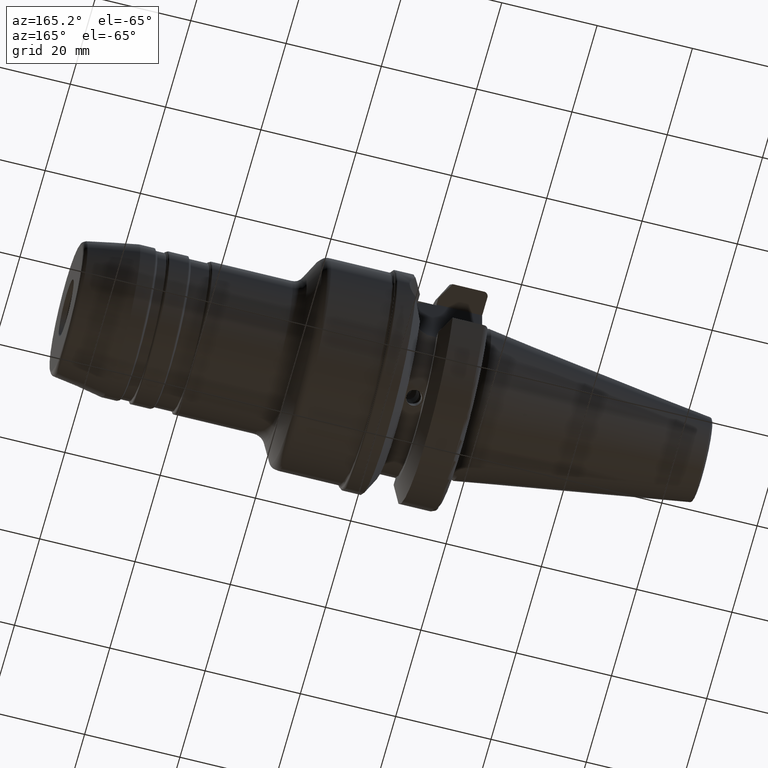
[diagram: clean part render]
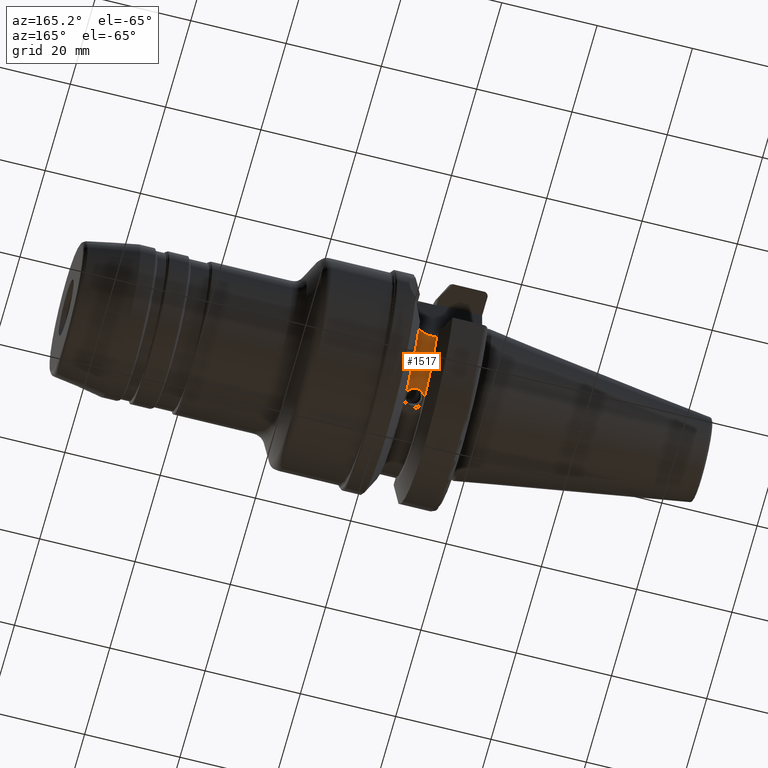
[diagram: same view with one face highlighted and labeled with its STEP entity id]
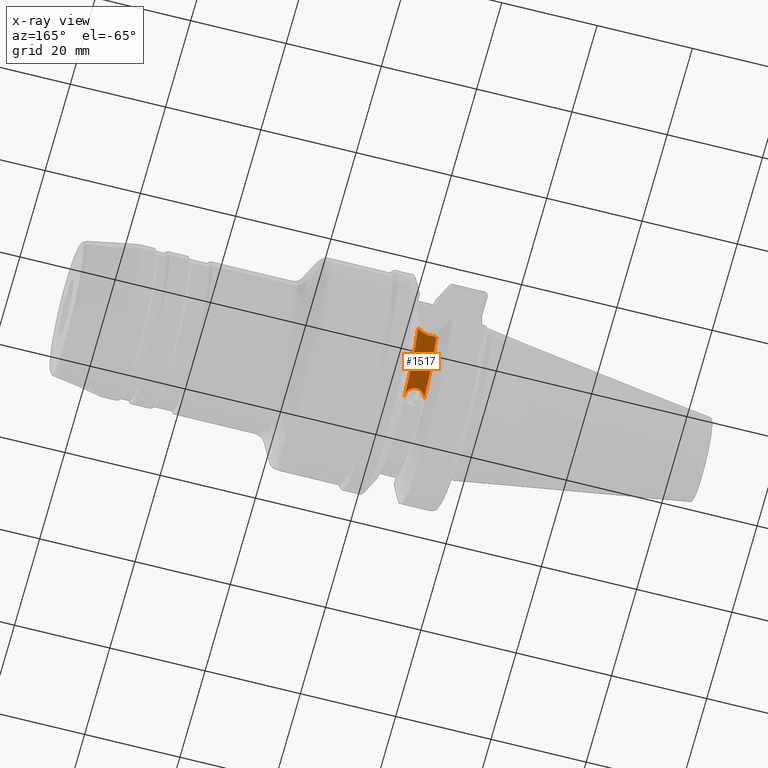
[diagram: x-ray of the same camera — body ghosted, the highlighted face saturated]
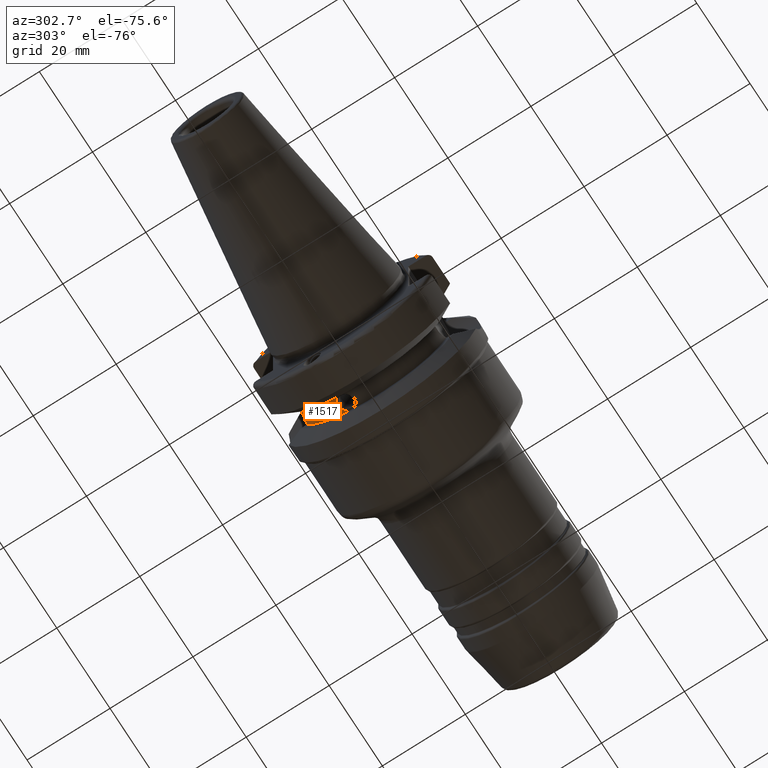
[diagram: same view with one face highlighted and labeled with its STEP entity id]
A machine part, auxiliary view. The second image highlights one B-rep face of the part: STEP entity #1517.
The next image is the same camera in x-ray: the body ghosted, the highlighted face saturated — about 0% of this face is hidden behind the body in this view.
A second angle (auxiliary view) of the same face is appended — the face is thin or edge-on in the first view.
In plain terms, the highlighted cylindrical surface (partial cylindrical patch) has radius 18 mm, axis along (1, 0, 0).
Its self-contained STEP definition (entity closure, byte-faithful):
#53=B_SPLINE_CURVE_WITH_KNOTS('',3,(#2731,#2732,#2733,#2734,#2735,#2736,
#2737,#2738,#2739,#2740,#2741,#2742,#2743,#2744,#2745,#2746,#2747,#2748,
#2749),.UNSPECIFIED.,.F.,.F.,(4,2,2,2,3,2,2,2,4),(0.904850416773924,0.980254422145898,
1.05565842751787,1.13106282494155,1.20646722236523,1.28187161978891,1.35727601721259,
1.43268002258457,1.50808402795654),.UNSPECIFIED.);
#54=B_SPLINE_CURVE_WITH_KNOTS('',3,(#2757,#2758,#2759,#2760,#2761,#2762),
 .UNSPECIFIED.,.F.,.F.,(4,2,4),(2.71612491144291,2.77269082711797,2.94431279974824),
 .UNSPECIFIED.);
#146=LINE('',#2755,#219);
#219=VECTOR('',#2093,10.);
#284=CYLINDRICAL_SURFACE('',#1712,18.);
#349=FACE_OUTER_BOUND('',#449,.T.);
#449=EDGE_LOOP('',(#1202,#1203,#1204,#1205,#1206));
#559=CIRCLE('',#1713,18.);
#560=CIRCLE('',#1714,18.);
#679=VERTEX_POINT('',#2710);
#680=VERTEX_POINT('',#2712);
#681=VERTEX_POINT('',#2752);
#682=VERTEX_POINT('',#2754);
#683=VERTEX_POINT('',#2756);
#870=EDGE_CURVE('',#679,#680,#53,.T.);
#871=EDGE_CURVE('',#680,#681,#559,.T.);
#872=EDGE_CURVE('',#681,#682,#146,.T.);
#873=EDGE_CURVE('',#682,#683,#54,.T.);
#874=EDGE_CURVE('',#679,#683,#560,.T.);
#1202=ORIENTED_EDGE('',*,*,#870,.T.);
#1203=ORIENTED_EDGE('',*,*,#871,.T.);
#1204=ORIENTED_EDGE('',*,*,#872,.T.);
#1205=ORIENTED_EDGE('',*,*,#873,.T.);
#1206=ORIENTED_EDGE('',*,*,#874,.F.);
#1517=ADVANCED_FACE('',(#349),#284,.T.);
#1712=AXIS2_PLACEMENT_3D('',#2751,#2089,#2090);
#1713=AXIS2_PLACEMENT_3D('',#2753,#2091,#2092);
#1714=AXIS2_PLACEMENT_3D('',#2763,#2094,#2095);
#2089=DIRECTION('center_axis',(1.,1.62798202122572E-21,0.));
#2090=DIRECTION('ref_axis',(0.,1.,0.));
#2091=DIRECTION('center_axis',(1.,1.62798202122572E-21,0.));
#2092=DIRECTION('ref_axis',(0.,0.,-1.));
#2093=DIRECTION('',(1.,1.62798202122572E-21,0.));
#2094=DIRECTION('center_axis',(1.,1.62798202122572E-21,0.));
#2095=DIRECTION('ref_axis',(0.,0.,-1.));
#2710=CARTESIAN_POINT('',(15.6,6.15636257986204,-16.9144671741463));
#2712=CARTESIAN_POINT('',(11.6,6.15636257986204,-16.9144671741463));
#2731=CARTESIAN_POINT('Ctrl Pts',(15.6,6.15636257986204,-16.9144671741463));
#2732=CARTESIAN_POINT('Ctrl Pts',(15.6,6.39255120461452,-16.8285015450642));
#2733=CARTESIAN_POINT('Ctrl Pts',(15.5497258458442,6.64236560843764,-16.731400926057));
#2734=CARTESIAN_POINT('Ctrl Pts',(15.3455537093516,7.09817584041003,-16.5431767676193));
#2735=CARTESIAN_POINT('Ctrl Pts',(15.1916671719844,7.30428950406867,-16.4523262857577));
#2736=CARTESIAN_POINT('Ctrl Pts',(14.8367590301186,7.62822753005897,-16.3046567106278));
#2737=CARTESIAN_POINT('Ctrl Pts',(14.6120032494149,7.76773105612014,-16.2380074730931));
#2738=CARTESIAN_POINT('Ctrl Pts',(14.1193066409199,7.95238364476018,-16.1483784597517));
#2739=CARTESIAN_POINT('Ctrl Pts',(13.8513479914123,7.99762756277515,-16.1256923376064));
#2740=CARTESIAN_POINT('Ctrl Pts',(13.6,7.99762756277515,-16.1256923376064));
#2741=CARTESIAN_POINT('Ctrl Pts',(13.3486520085877,7.99762756277515,-16.1256923376064));
#2742=CARTESIAN_POINT('Ctrl Pts',(13.08069335908,7.95238364476018,-16.1483784597517));
#2743=CARTESIAN_POINT('Ctrl Pts',(12.587996750585,7.76773105612014,-16.2380074730931));
#2744=CARTESIAN_POINT('Ctrl Pts',(12.3632409698814,7.62822753005897,-16.3046567106278));
#2745=CARTESIAN_POINT('Ctrl Pts',(12.0083328280156,7.30428950406867,-16.4523262857577));
#2746=CARTESIAN_POINT('Ctrl Pts',(11.8544462906484,7.09817584041003,-16.5431767676193));
#2747=CARTESIAN_POINT('Ctrl Pts',(11.6502741541558,6.64236560843764,-16.731400926057));
#2748=CARTESIAN_POINT('Ctrl Pts',(11.6,6.39255120461452,-16.8285015450642));
#2749=CARTESIAN_POINT('Ctrl Pts',(11.6,6.15636257986204,-16.9144671741463));
#2751=CARTESIAN_POINT('Origin',(13.6,2.08175771018334E-15,0.));
#2752=CARTESIAN_POINT('',(11.6,16.3,-7.636098480245));
#2753=CARTESIAN_POINT('Origin',(11.6,2.08175445421929E-15,0.));
#2754=CARTESIAN_POINT('',(13.4980384612482,16.3,-7.636098480245));
#2755=CARTESIAN_POINT('',(13.6,16.3,-7.636098480245));
#2756=CARTESIAN_POINT('',(15.6,16.757684804292,-6.57114906237867));
#2757=CARTESIAN_POINT('Ctrl Pts',(13.4980384612482,16.3,-7.636098480245));
#2758=CARTESIAN_POINT('Ctrl Pts',(13.6847796623189,16.329191641879,-7.57378606195196));
#2759=CARTESIAN_POINT('Ctrl Pts',(13.8692695970121,16.3611703468843,-7.50459986516079));
#2760=CARTESIAN_POINT('Ctrl Pts',(14.6012065414299,16.4995936761885,-7.19909968210666));
#2761=CARTESIAN_POINT('Ctrl Pts',(15.1240022455652,16.6256027426009,-6.90798353944051));
#2762=CARTESIAN_POINT('Ctrl Pts',(15.6,16.757684804292,-6.57114906237867));
#2763=CARTESIAN_POINT('Origin',(15.6,2.08176096614738E-15,0.));